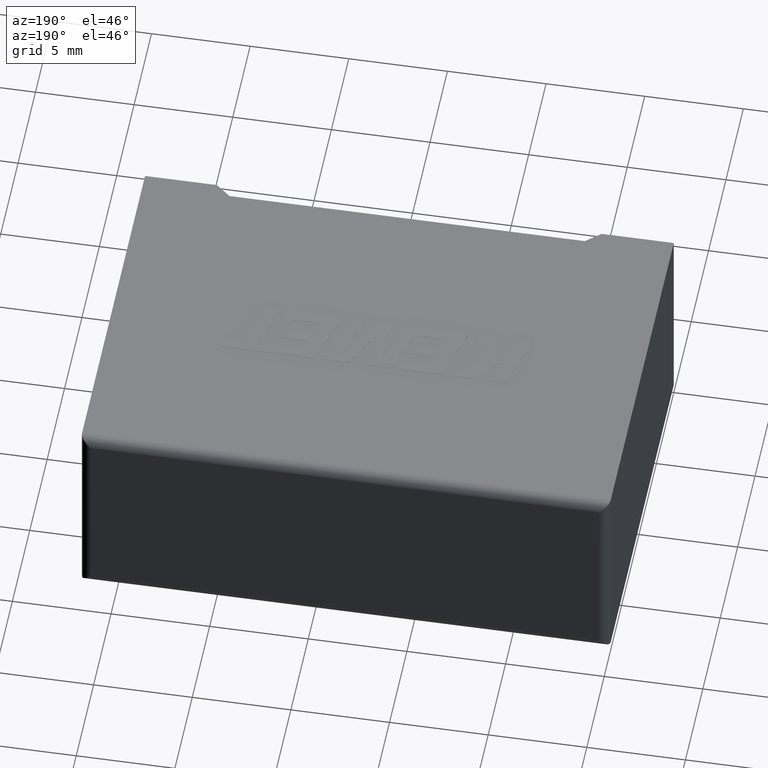
[diagram: clean part render]
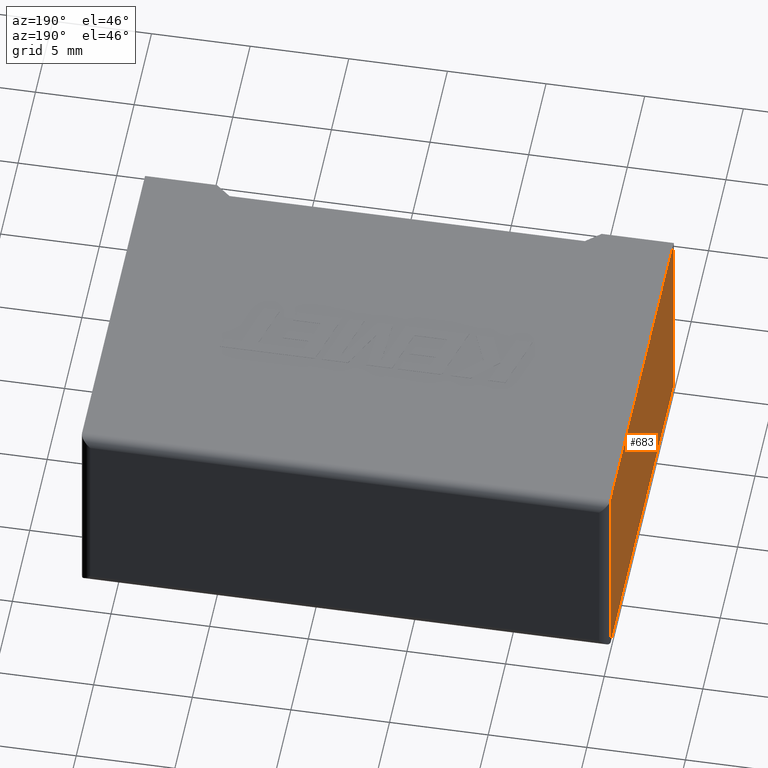
[diagram: same view with one face highlighted and labeled with its STEP entity id]
A machine part, auxiliary view. The second image highlights one B-rep face of the part: STEP entity #683.
In plain terms, the highlighted planar face has unit normal (1, 0, 0).
Its self-contained STEP definition (entity closure, byte-faithful):
#137 = CARTESIAN_POINT ( 'NONE',  ( 0.000000000000000000, 0.000000000000000000, 0.000000000000000000 ) ) ;
#209 = ORIENTED_EDGE ( 'NONE', *, *, #1610, .F. ) ;
#259 = LINE ( 'NONE', #2164, #2838 ) ;
#267 = CARTESIAN_POINT ( 'NONE',  ( 0.000000000000000000, 0.000000000000000000, 0.000000000000000000 ) ) ;
#332 = EDGE_LOOP ( 'NONE', ( #209, #2039, #2220, #1588 ) ) ;
#341 = DIRECTION ( 'NONE',  ( -0.000000000000000000, -0.000000000000000000, -1.000000000000000000 ) ) ;
#528 = VERTEX_POINT ( 'NONE', #968 ) ;
#546 = DIRECTION ( 'NONE',  ( 1.000000000000000000, 0.000000000000000000, 0.000000000000000000 ) ) ;
#649 = LINE ( 'NONE', #1595, #2249 ) ;
#671 = VECTOR ( 'NONE', #341, 1000.000000000000000 ) ;
#683 = ADVANCED_FACE ( 'NONE', ( #995 ), #775, .F. ) ;
#775 = PLANE ( 'NONE',  #2400 ) ;
#924 = CARTESIAN_POINT ( 'NONE',  ( 0.000000000000000000, 0.000000000000000000, 10.19999999999999929 ) ) ;
#931 = EDGE_CURVE ( 'NONE', #2655, #2506, #2449, .T. ) ;
#968 = CARTESIAN_POINT ( 'NONE',  ( 0.000000000000000000, 18.10000000000000142, 10.19999999999999929 ) ) ;
#969 = DIRECTION ( 'NONE',  ( -0.000000000000000000, -1.000000000000000000, -0.000000000000000000 ) ) ;
#995 = FACE_OUTER_BOUND ( 'NONE', #332, .T. ) ;
#1139 = EDGE_CURVE ( 'NONE', #2450, #2506, #1625, .T. ) ;
#1290 = CARTESIAN_POINT ( 'NONE',  ( 0.000000000000000000, 0.000000000000000000, 10.19999999999999929 ) ) ;
#1348 = DIRECTION ( 'NONE',  ( 0.000000000000000000, 0.000000000000000000, -1.000000000000000000 ) ) ;
#1512 = CARTESIAN_POINT ( 'NONE',  ( 0.000000000000000000, 0.000000000000000000, 10.19999999999999929 ) ) ;
#1588 = ORIENTED_EDGE ( 'NONE', *, *, #931, .F. ) ;
#1595 = CARTESIAN_POINT ( 'NONE',  ( 0.000000000000000000, 18.10000000000000142, 10.19999999999999929 ) ) ;
#1610 = EDGE_CURVE ( 'NONE', #528, #2655, #259, .T. ) ;
#1625 = LINE ( 'NONE', #267, #1995 ) ;
#1821 = CARTESIAN_POINT ( 'NONE',  ( 0.000000000000000000, 18.10000000000000142, 0.000000000000000000 ) ) ;
#1935 = EDGE_CURVE ( 'NONE', #528, #2450, #649, .T. ) ;
#1995 = VECTOR ( 'NONE', #2169, 1000.000000000000000 ) ;
#2039 = ORIENTED_EDGE ( 'NONE', *, *, #1935, .T. ) ;
#2164 = CARTESIAN_POINT ( 'NONE',  ( 0.000000000000000000, 0.000000000000000000, 10.19999999999999929 ) ) ;
#2169 = DIRECTION ( 'NONE',  ( -0.000000000000000000, -1.000000000000000000, -0.000000000000000000 ) ) ;
#2220 = ORIENTED_EDGE ( 'NONE', *, *, #1139, .T. ) ;
#2249 = VECTOR ( 'NONE', #1348, 1000.000000000000000 ) ;
#2400 = AXIS2_PLACEMENT_3D ( 'NONE', #1512, #546, #2474 ) ;
#2449 = LINE ( 'NONE', #1290, #671 ) ;
#2450 = VERTEX_POINT ( 'NONE', #1821 ) ;
#2474 = DIRECTION ( 'NONE',  ( 0.000000000000000000, 0.000000000000000000, -1.000000000000000000 ) ) ;
#2506 = VERTEX_POINT ( 'NONE', #137 ) ;
#2655 = VERTEX_POINT ( 'NONE', #924 ) ;
#2838 = VECTOR ( 'NONE', #969, 1000.000000000000000 ) ;